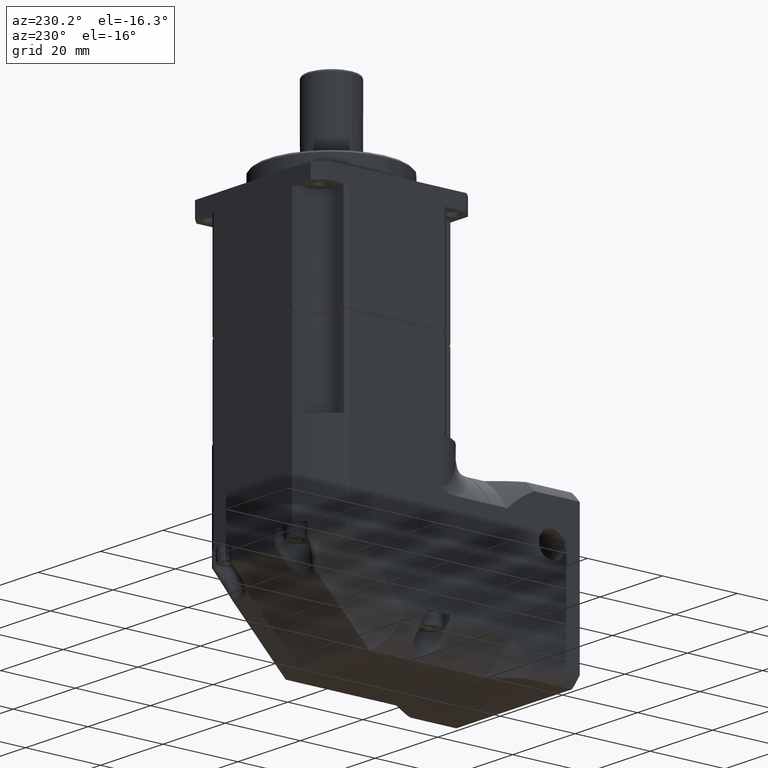
[diagram: clean part render]
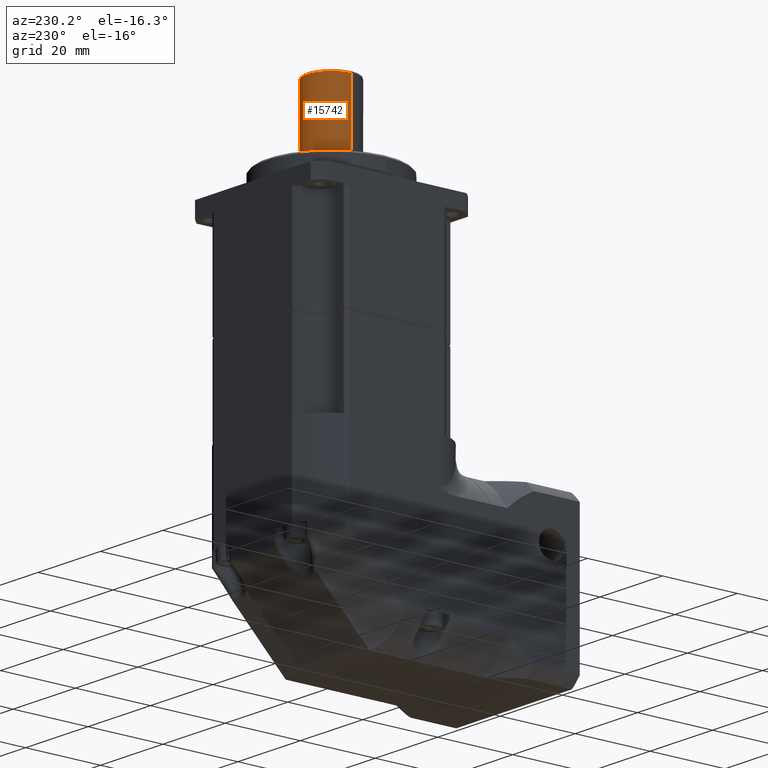
[diagram: same view with one face highlighted and labeled with its STEP entity id]
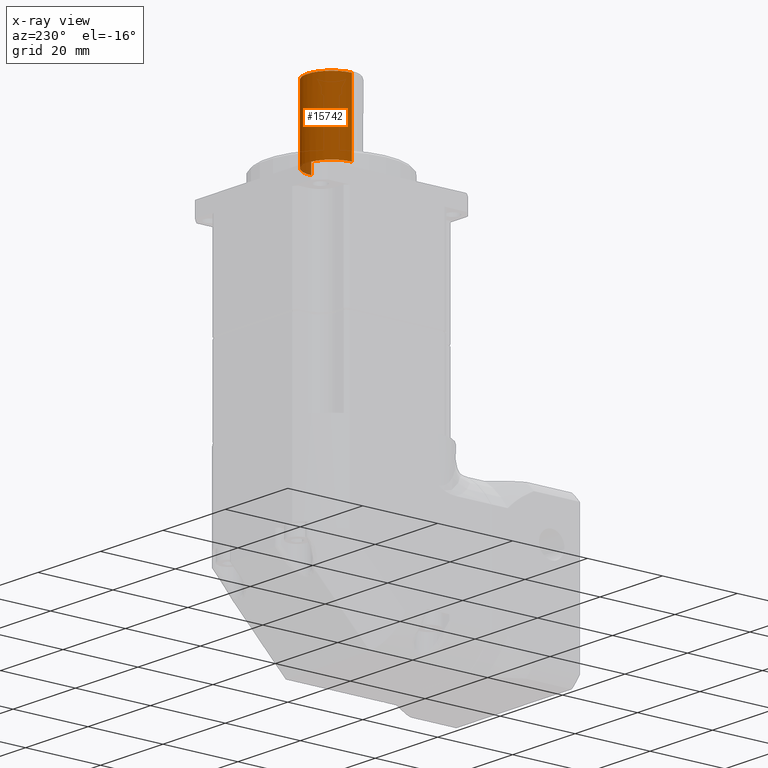
[diagram: x-ray of the same camera — body ghosted, the highlighted face saturated]
A machine part, auxiliary view. The second image highlights one B-rep face of the part: STEP entity #15742.
The next image is the same camera in x-ray: the body ghosted, the highlighted face saturated — about 3% of this face is hidden behind the body in this view.
In plain terms, the highlighted cylindrical surface (edge-blend (fillet) strip) has radius 6.5 mm, axis along (0, 0, 1).
Its self-contained STEP definition (entity closure, byte-faithful):
#156 = DIRECTION ( 'NONE',  ( 1.000000000000000000, 0.0000000000000000000, 0.0000000000000000000 ) ) ;
#1477 = ORIENTED_EDGE ( 'NONE', *, *, #15775, .T. ) ;
#1741 = DIRECTION ( 'NONE',  ( -0.0000000000000000000, -0.0000000000000000000, 1.000000000000000000 ) ) ;
#1901 = ORIENTED_EDGE ( 'NONE', *, *, #13979, .T. ) ;
#2172 = DIRECTION ( 'NONE',  ( -0.0000000000000000000, -0.0000000000000000000, 1.000000000000000000 ) ) ;
#3676 = CARTESIAN_POINT ( 'NONE',  ( 6.500000000000002700, 0.0000000000000000000, -19.49999999999998900 ) ) ;
#3771 = EDGE_CURVE ( 'NONE', #6222, #6462, #4609, .T. ) ;
#3817 = CARTESIAN_POINT ( 'NONE',  ( 0.0000000000000000000, 0.0000000000000000000, -19.49999999999998900 ) ) ;
#4253 = CIRCLE ( 'NONE', #16349, 6.500000000000002700 ) ;
#4504 = DIRECTION ( 'NONE',  ( 0.0000000000000000000, 0.0000000000000000000, -1.000000000000000000 ) ) ;
#4609 = LINE ( 'NONE', #12235, #6498 ) ;
#5111 = CARTESIAN_POINT ( 'NONE',  ( 0.0000000000000000000, 0.0000000000000000000, -0.5000000000000035500 ) ) ;
#6218 = CARTESIAN_POINT ( 'NONE',  ( 0.0000000000000000000, 0.0000000000000000000, -0.5000000000000035500 ) ) ;
#6222 = VERTEX_POINT ( 'NONE', #12429 ) ;
#6392 = CARTESIAN_POINT ( 'NONE',  ( 6.500000000000002700, 0.0000000000000000000, -0.5000000000000035500 ) ) ;
#6462 = VERTEX_POINT ( 'NONE', #10311 ) ;
#6498 = VECTOR ( 'NONE', #1741, 1000.000000000000000 ) ;
#6720 = DIRECTION ( 'NONE',  ( 1.000000000000000000, 0.0000000000000000000, 0.0000000000000000000 ) ) ;
#6841 = CARTESIAN_POINT ( 'NONE',  ( 0.0000000000000000000, 0.0000000000000000000, 0.0000000000000000000 ) ) ;
#7415 = ORIENTED_EDGE ( 'NONE', *, *, #13230, .F. ) ;
#7546 = AXIS2_PLACEMENT_3D ( 'NONE', #5111, #17156, #8251 ) ;
#8157 = VECTOR ( 'NONE', #14289, 1000.000000000000000 ) ;
#8251 = DIRECTION ( 'NONE',  ( 1.000000000000000000, 0.0000000000000000000, 0.0000000000000000000 ) ) ;
#9588 = VERTEX_POINT ( 'NONE', #3676 ) ;
#10052 = AXIS2_PLACEMENT_3D ( 'NONE', #6218, #4504, #156 ) ;
#10139 = FACE_OUTER_BOUND ( 'NONE', #11343, .T. ) ;
#10311 = CARTESIAN_POINT ( 'NONE',  ( -6.500000000000002700, 7.960204194457798400E-016, -0.5000000000000035500 ) ) ;
#11343 = EDGE_LOOP ( 'NONE', ( #1477, #12358, #15092, #1901, #7415 ) ) ;
#12235 = CARTESIAN_POINT ( 'NONE',  ( -6.500000000000002700, 7.960204194457798400E-016, 0.0000000000000000000 ) ) ;
#12358 = ORIENTED_EDGE ( 'NONE', *, *, #3771, .T. ) ;
#12429 = CARTESIAN_POINT ( 'NONE',  ( -6.500000000000002700, 7.960204194457798400E-016, -19.49999999999998900 ) ) ;
#12852 = DIRECTION ( 'NONE',  ( 1.000000000000000000, 0.0000000000000000000, 0.0000000000000000000 ) ) ;
#12957 = CIRCLE ( 'NONE', #7546, 6.500000000000002700 ) ;
#13230 = EDGE_CURVE ( 'NONE', #9588, #17642, #15177, .T. ) ;
#13618 = VERTEX_POINT ( 'NONE', #13961 ) ;
#13877 = CYLINDRICAL_SURFACE ( 'NONE', #14964, 6.500000000000002700 ) ;
#13961 = CARTESIAN_POINT ( 'NONE',  ( 7.960204194457797400E-016, 6.500000000000002700, -0.5000000000000035500 ) ) ;
#13979 = EDGE_CURVE ( 'NONE', #13618, #17642, #16055, .T. ) ;
#14289 = DIRECTION ( 'NONE',  ( -0.0000000000000000000, -0.0000000000000000000, 1.000000000000000000 ) ) ;
#14838 = EDGE_CURVE ( 'NONE', #6462, #13618, #12957, .T. ) ;
#14964 = AXIS2_PLACEMENT_3D ( 'NONE', #6841, #15883, #6720 ) ;
#15092 = ORIENTED_EDGE ( 'NONE', *, *, #14838, .T. ) ;
#15177 = LINE ( 'NONE', #17503, #8157 ) ;
#15742 = ADVANCED_FACE ( 'NONE', ( #10139 ), #13877, .T. ) ;
#15775 = EDGE_CURVE ( 'NONE', #9588, #6222, #4253, .T. ) ;
#15883 = DIRECTION ( 'NONE',  ( -0.0000000000000000000, -0.0000000000000000000, 1.000000000000000000 ) ) ;
#16055 = CIRCLE ( 'NONE', #10052, 6.500000000000002700 ) ;
#16349 = AXIS2_PLACEMENT_3D ( 'NONE', #3817, #2172, #12852 ) ;
#17156 = DIRECTION ( 'NONE',  ( 0.0000000000000000000, 0.0000000000000000000, -1.000000000000000000 ) ) ;
#17503 = CARTESIAN_POINT ( 'NONE',  ( 6.500000000000002700, 0.0000000000000000000, 0.0000000000000000000 ) ) ;
#17642 = VERTEX_POINT ( 'NONE', #6392 ) ;